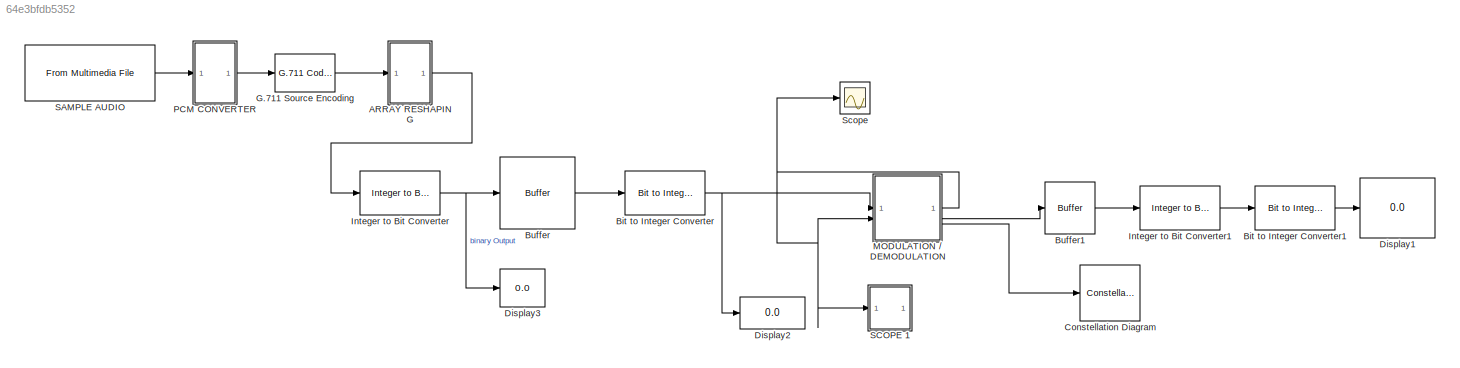
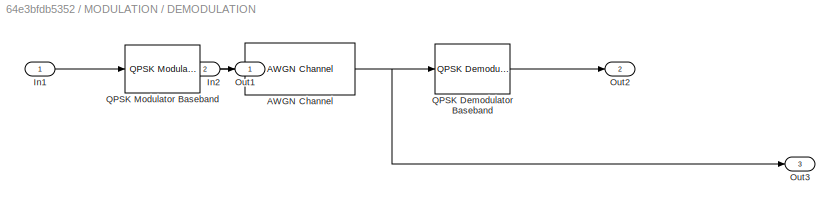
MODEL slx_64e3bfdb5352
KIND model
CONFIG AbsTol = auto
CONFIG EnableMultiTasking = off
CONFIG FixedStep = auto
CONFIG MaxStep = auto
CONFIG MinStep = auto
CONFIG RelTol = 1e-3
CONFIG SampleTimeConstraint = Unconstrained
CONFIG SolverName = VariableStepAuto
CONFIG StartTime = 0.0
CONFIG StopTime = 10.0
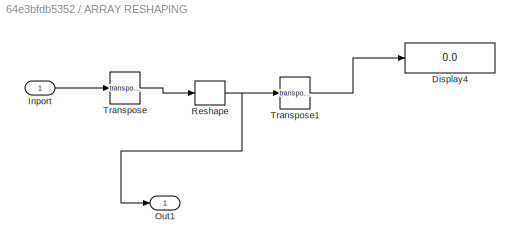
BLOCK [SubSystem] ARRAY RESHAPING
BLOCK [Display] ARRAY RESHAPING/Display4
  Decimation = 1
BLOCK [Inport] ARRAY RESHAPING/Inport
BLOCK [Outport] ARRAY RESHAPING/Out1
BLOCK [Reshape] ARRAY RESHAPING/Reshape
BLOCK [Math] ARRAY RESHAPING/Transpose
  Operator = transpose
BLOCK [Math] ARRAY RESHAPING/Transpose1
  Operator = transpose
BLOCK [Reference] Bit to Integer Converter  REF=simulink/Logic and Bit
Operations/Bit to Integer
Converter
  SourceBlock = simulink/Logic and Bit\nOperations/Bit to Integer\nConverter
  SourceType = Bit to Integer Converter
BLOCK [Reference] Bit to Integer Converter1  REF=simulink/Logic and Bit
Operations/Bit to Integer
Converter
  SourceBlock = simulink/Logic and Bit\nOperations/Bit to Integer\nConverter
  SourceType = Bit to Integer Converter
BLOCK [Buffer] Buffer
  N = 2
  OutputFrames = off
BLOCK [Buffer] Buffer1
  N = 48
  OutputFrames = off
BLOCK [ConstellationDiagram] Constellation Diagram
  DefaultConfigurationName = comm.scopes.ConstellationDiagramBlockCfg
  GraphicalSettings = {"Style":{"BackgroundColor":[0.12941176470588237,0.12941176470588237,0.12941176470588237],"AxesColor":[0.07058823529411765,0.07058823529411765,0.07058823529411765],"LabelsColor":[0.8509803921568627,0.8509803921568627,0.8509803921568627],"LineStyle":["NONE"],"LineColor":[[1,0,0]],"LineWidth":[1],"Marker":["+"],"IsRefLine":[true],"FontSize":"small"}}
  ScopeFrameLocation = window
  ScopeSpecificationString = comm.scopes.ConstellationDiagramBlockCfg('CurrentConfiguration', extmgr.ConfigurationSet(extmgr.Configuration('Tools','Measurements',true),extmgr.Configuration('Core','General UI',true,'ShowNewAction',false,'ShowLoadConfigSet',false,'ShowSaveConfigSet',false,'FigureColor',[0.156862745098039 0.156862745098039 0.156862745098039]),extmgr.Configuration('Tools','Plot Navigation',true,'XDataDisplay',80,...<+365ch>
  SymbolsToDisplay = 1000
  SymbolsToDisplaySource = Property
  WasSavedAsWebScope = on
  WindowPosition = [548.000000,46.000000,600.000000,600.000000,]
  XLimits = [-1.46,1.46]
  YLimits = [-1.38,1.38]
BLOCK [Display] Display1
  Decimation = 1
BLOCK [Display] Display2
  Decimation = 1
BLOCK [Display] Display3
  Decimation = 1
BLOCK [Reference] G.711 Source Encoding  REF=dspquant2/G.711 Codec
  SourceBlock = dspquant2/G.711 Codec
  SourceType = G.711 Codec
BLOCK [Reference] Integer to Bit Converter  REF=simulink/Logic and Bit
Operations/Integer to Bit
Converter
  SourceBlock = simulink/Logic and Bit\nOperations/Integer to Bit\nConverter
  SourceType = Integer to Bit Converter
BLOCK [Reference] Integer to Bit Converter1  REF=simulink/Logic and Bit
Operations/Integer to Bit
Converter
  SourceBlock = simulink/Logic and Bit\nOperations/Integer to Bit\nConverter
  SourceType = Integer to Bit Converter
BLOCK [SubSystem] MODULATION // DEMODULATION
BLOCK [Reference] MODULATION // DEMODULATION/AWGN Channel  REF=commchan3/AWGN
Channel
  SourceBlock = commchan3/AWGN\nChannel
  SourceType = AWGN Channel
  UserDataPersistent = on
BLOCK [Inport] MODULATION // DEMODULATION/In1
BLOCK [Inport] MODULATION // DEMODULATION/In2
  Port = 2
BLOCK [Outport] MODULATION // DEMODULATION/Out1
BLOCK [Outport] MODULATION // DEMODULATION/Out2
  Port = 2
BLOCK [Outport] MODULATION // DEMODULATION/Out3
  Port = 3
BLOCK [Reference] MODULATION // DEMODULATION/QPSK Demodulator Baseband  REF=commdigbbndpm3/QPSK
Demodulator
Baseband
  SourceBlock = commdigbbndpm3/QPSK\nDemodulator\nBaseband
  SourceType = QPSK Demodulator Baseband
BLOCK [Reference] MODULATION // DEMODULATION/QPSK Modulator Baseband  REF=commdigbbndpm3/QPSK
Modulator
Baseband
  SourceBlock = commdigbbndpm3/QPSK\nModulator\nBaseband
  SourceType = QPSK Modulator Baseband
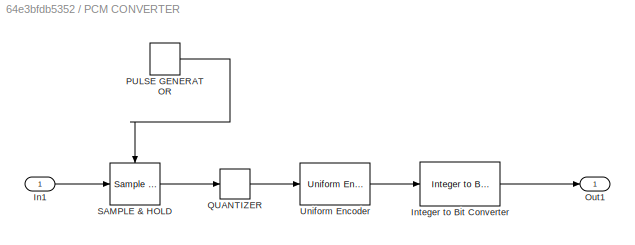
BLOCK [SubSystem] PCM CONVERTER
BLOCK [Inport] PCM CONVERTER/In1
BLOCK [Reference] PCM CONVERTER/Integer to Bit Converter  REF=simulink/Logic and Bit
Operations/Integer to Bit
Converter
  LibrarySourceBlock = commutil2/Integer to Bit\nConverter
  SourceBlock = simulink/Logic and Bit\nOperations/Integer to Bit\nConverter
  SourceType = Integer to Bit Converter
BLOCK [Outport] PCM CONVERTER/Out1
BLOCK [DiscretePulseGenerator] PCM CONVERTER/PULSE GENERATOR
  Period = 1/18000
  PulseType = Time based
  PulseWidth = 50
BLOCK [Quantizer] PCM CONVERTER/QUANTIZER
  QuantizationInterval = 1
BLOCK [Reference] PCM CONVERTER/SAMPLE & HOLD  REF=dspsigops/Sample
and Hold
  LibrarySourceBlock = dsphdlsupportsigops/Sample\nand Hold
  SourceBlock = dspsigops/Sample\nand Hold
  SourceType = Sample and Hold
BLOCK [Reference] PCM CONVERTER/Uniform Encoder  REF=dspquant2/Uniform
Encoder
  SourceBlock = dspquant2/Uniform\nEncoder
  SourceType = Uniform Encoder
BLOCK [Reference] SAMPLE AUDIO  REF=dspvision/From Multimedia File
  LibrarySourceBlock = audiosources/From Multimedia File
  SourceBlock = dspvision/From Multimedia File
  SourceType = From Multimedia File
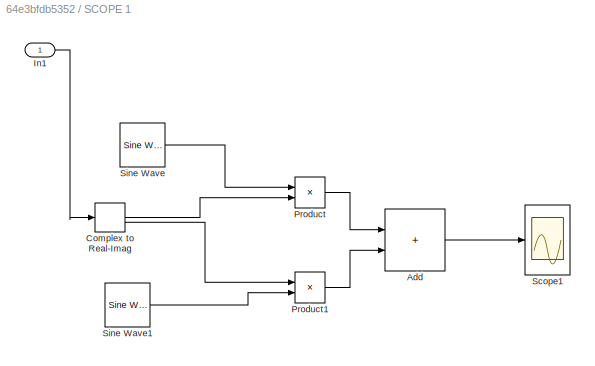
BLOCK [SubSystem] SCOPE 1
BLOCK [Sum] SCOPE 1/Add
  IconShape = rectangular
BLOCK [ComplexToRealImag] SCOPE 1/Complex to Real-Imag
BLOCK [Inport] SCOPE 1/In1
BLOCK [Product] SCOPE 1/Product
BLOCK [Product] SCOPE 1/Product1
BLOCK [Scope] SCOPE 1/Scope1
  Floating = off
  NumInputPorts = 1
  ScopeSpecificationString = Simulink.scopes.TimeScopeBlockCfg('CurrentConfiguration', extmgr.ConfigurationSet(extmgr.Configuration('Core','General UI',true),extmgr.Configuration('Core','Source UI',true),extmgr.Configuration('Sources','WiredSimulink',true,'DataLoggingVariableName','ScopeData1'),extmgr.Configuration('Visuals','Time Domain',true,'SerializedDisplays',{struct('MinYLimReal','0.68893','MaxYLimReal','0.69008','YLabe...<+1408ch>
BLOCK [Reference] SCOPE 1/Sine Wave  REF=dspsrcs4/Sine Wave
  SourceBlock = dspsrcs4/Sine Wave
  SourceType = Sine Wave
BLOCK [Reference] SCOPE 1/Sine Wave1  REF=dspsrcs4/Sine Wave
  SourceBlock = dspsrcs4/Sine Wave
  SourceType = Sine Wave
BLOCK [Scope] Scope
  Floating = off
  NumInputPorts = 1
  ScopeSpecificationString = Simulink.scopes.TimeScopeBlockCfg('CurrentConfiguration', extmgr.ConfigurationSet(extmgr.Configuration('Core','General UI',true),extmgr.Configuration('Core','Source UI',true),extmgr.Configuration('Sources','WiredSimulink',true,'DataLoggingVariableName','ScopeData1'),extmgr.Configuration('Visuals','Time Domain',true,'SerializedDisplays',{struct('MinYLimReal','0.34687','MaxYLimReal','0.36121','YLabe...<+1555ch>
LINE ARRAY RESHAPING/Inport:1 -> ARRAY RESHAPING/Transpose:1
NET ARRAY RESHAPING/Reshape:1 -> ARRAY RESHAPING/Out1:1, ARRAY RESHAPING/Transpose1:1
LINE ARRAY RESHAPING/Transpose1:1 -> ARRAY RESHAPING/Display4:1
LINE ARRAY RESHAPING/Transpose:1 -> ARRAY RESHAPING/Reshape:1
LINE ARRAY RESHAPING:1 -> Integer to Bit Converter:1
LINE Bit to Integer Converter1:1 -> Display1:1
NET Bit to Integer Converter:1 -> Display2:1, MODULATION // DEMODULATION:1
LINE Buffer1:1 -> Integer to Bit Converter1:1
LINE Buffer:1 -> Bit to Integer Converter:1
LINE G.711 Source Encoding:1 -> ARRAY RESHAPING:1
LINE Integer to Bit Converter1:1 -> Bit to Integer Converter1:1
NET Integer to Bit Converter:1 -> Buffer:1, Display3:1
NET MODULATION // DEMODULATION/AWGN Channel:1 -> MODULATION // DEMODULATION/Out3:1, MODULATION // DEMODULATION/QPSK Demodulator Baseband:1
LINE MODULATION // DEMODULATION/In1:1 -> MODULATION // DEMODULATION/QPSK Modulator Baseband:1
LINE MODULATION // DEMODULATION/In2:1 -> MODULATION // DEMODULATION/AWGN Channel:1
LINE MODULATION // DEMODULATION/QPSK Demodulator Baseband:1 -> MODULATION // DEMODULATION/Out2:1
LINE MODULATION // DEMODULATION/QPSK Modulator Baseband:1 -> MODULATION // DEMODULATION/Out1:1
NET MODULATION // DEMODULATION:1 -> MODULATION // DEMODULATION:2, SCOPE 1:1, Scope:1
LINE MODULATION // DEMODULATION:2 -> Buffer1:1
LINE MODULATION // DEMODULATION:3 -> Constellation Diagram:1
LINE PCM CONVERTER/In1:1 -> PCM CONVERTER/SAMPLE & HOLD:1
LINE PCM CONVERTER/Integer to Bit Converter:1 -> PCM CONVERTER/Out1:1
LINE PCM CONVERTER/PULSE GENERATOR:1 -> PCM CONVERTER/SAMPLE & HOLD:trigger
LINE PCM CONVERTER/QUANTIZER:1 -> PCM CONVERTER/Uniform Encoder:1
LINE PCM CONVERTER/SAMPLE & HOLD:1 -> PCM CONVERTER/QUANTIZER:1
LINE PCM CONVERTER/Uniform Encoder:1 -> PCM CONVERTER/Integer to Bit Converter:1
LINE PCM CONVERTER:1 -> G.711 Source Encoding:1
LINE SAMPLE AUDIO:1 -> PCM CONVERTER:1
LINE SCOPE 1/Add:1 -> SCOPE 1/Scope1:1
LINE SCOPE 1/Complex to Real-Imag:1 -> SCOPE 1/Product:2
LINE SCOPE 1/Complex to Real-Imag:2 -> SCOPE 1/Product1:1
LINE SCOPE 1/In1:1 -> SCOPE 1/Complex to Real-Imag:1
LINE SCOPE 1/Product1:1 -> SCOPE 1/Add:2
LINE SCOPE 1/Product:1 -> SCOPE 1/Add:1
LINE SCOPE 1/Sine Wave1:1 -> SCOPE 1/Product1:2
LINE SCOPE 1/Sine Wave:1 -> SCOPE 1/Product:1
note: NET lines group one-source signal fan-out (src -> all destinations, sorted); 1:1 wires keep LINE
